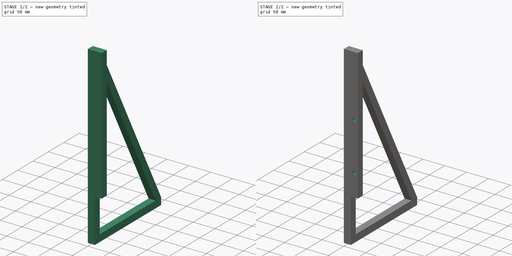
[diagram: build sequence overview — one tinted view per stage of 2, left to right]
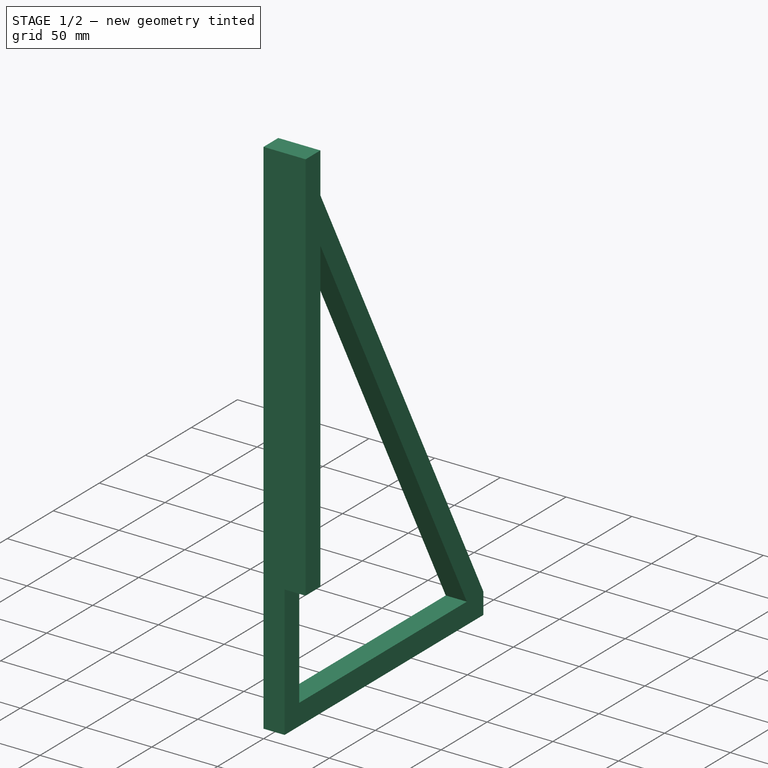
[diagram: stage 1 of 2 — iso view after this stage's code; geometry added in this stage tinted green]
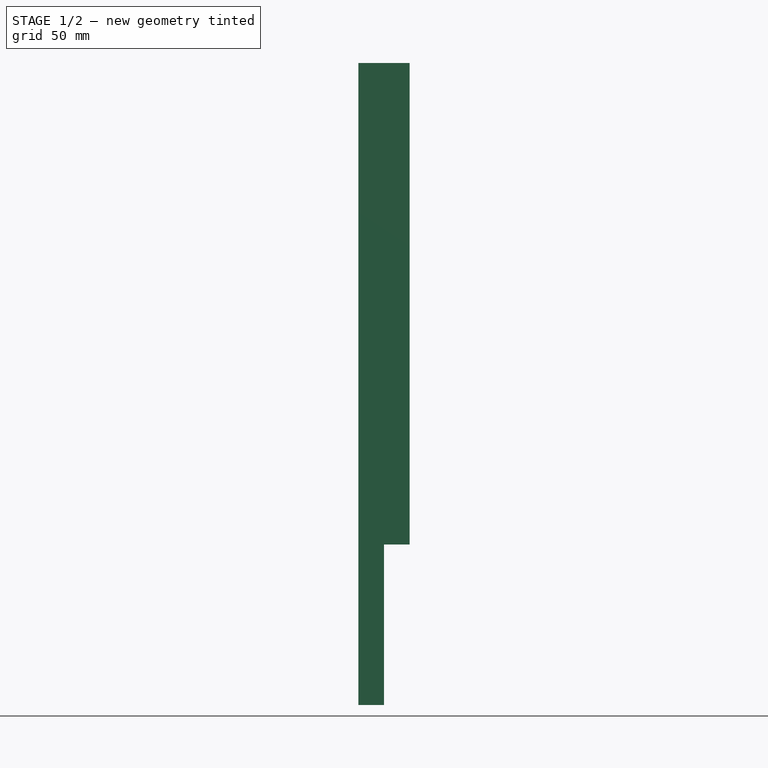
[diagram: stage 1 of 2 — front view after this stage's code; geometry added in this stage tinted green]
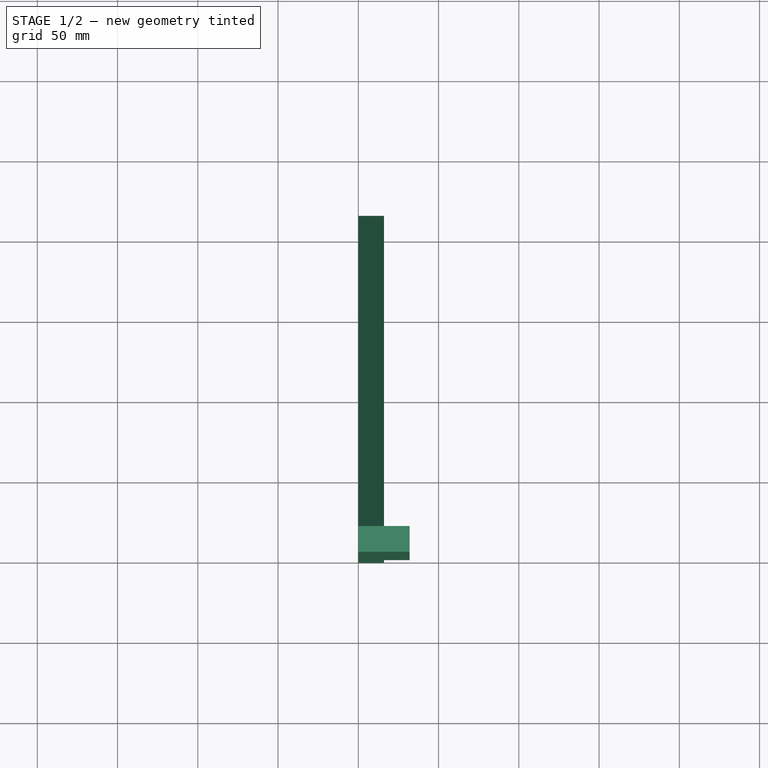
[diagram: stage 1 of 2 — top view after this stage's code; geometry added in this stage tinted green]
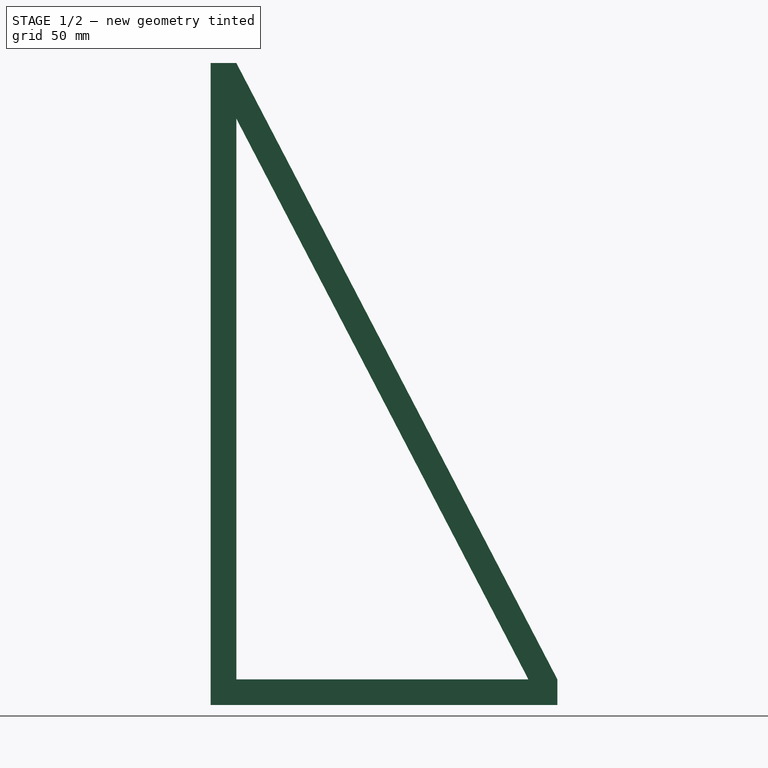
[diagram: stage 1 of 2 — right view after this stage's code; geometry added in this stage tinted green]
FCSTD DOCUMENT  (FreeCAD 1.0R39285 (Git))
Label: Supporting-A-Subframe-Flipped
License: All rights reserved
objects: Sketcher::SketchObject×3, PartDesign::Pad×2, PartDesign::Pocket×1, PartDesign::Body×1
note: 16 computed .brp shape members not serialized (recipe doc carries the construction recipe); baked Part::Feature solids carry a one-line shape summary decoded from their .brp

FEATURE [Sketcher::SketchObject] Sketch
  ArcFitTolerance = 1e-06
  AttachmentSupport = -> [YZ_Plane]
  FullyConstrained = true
  MakeInternals = false
  MapMode = 5
  Placement = pos=(0,0,0) rot=(0.57735,0.57735,0.57735;2.0944rad)
  sketch-geometry (12):
    g0: LineSegment StartX=0 StartY=0 StartZ=0 EndX=0 EndY=-100 EndZ=0
    g1: LineSegment StartX=0 StartY=-100 StartZ=0 EndX=16 EndY=-100 EndZ=0
    g2: LineSegment StartX=16 StartY=-100 StartZ=0 EndX=216 EndY=-100 EndZ=0
    g3: LineSegment StartX=216 StartY=-100 StartZ=0 EndX=216 EndY=-84 EndZ=0
    g4: LineSegment StartX=0 StartY=0 StartZ=0 EndX=0 EndY=300 EndZ=0
    g5: LineSegment StartX=0 StartY=300 StartZ=0 EndX=16 EndY=300 EndZ=0
    g6: LineSegment StartX=16 StartY=300 StartZ=0 EndX=216 EndY=-84 EndZ=0
    g7: LineSegment [constr] StartX=16 StartY=300 StartZ=0 EndX=16 EndY=-100 EndZ=0
    g8: LineSegment [constr] StartX=216 StartY=-84 StartZ=0 EndX=0 EndY=-84 EndZ=0
    g9: LineSegment StartX=16 StartY=265.363 StartZ=0 EndX=197.96 EndY=-84 EndZ=0
    g10: LineSegment StartX=16 StartY=265.363 StartZ=0 EndX=16 EndY=-84 EndZ=0
    g11: LineSegment StartX=16 StartY=-84 StartZ=0 EndX=197.96 EndY=-84 EndZ=0
  constraints (34):
    c: Distance(g0) = 100
    c: Coincident(g0,g-1)
    c: PointOnObject(g0,g-2)
    c: Distance(g1) = 16
    c: Coincident(g1,g0)
    c: Horizontal(g1)
    c: Distance(g2) = 200
    c: Coincident(g2,g1)
    c: Horizontal(g2)
    c: Distance(g3) = 16
    c: Coincident(g3,g2)
    c: Vertical(g3)
    c: Distance(g4) = 300
    c: Coincident(g4,g0)
    c: PointOnObject(g4,g-2)
    c: Distance(g5) = 16
    c: Coincident(g5,g4)
    c: Horizontal(g5)
    c: Coincident(g6,g5)
    c: Coincident(g6,g3)
    c: Coincident(g7,g5)
    c: Coincident(g7,g1)
    c: Coincident(g8,g3)
    c: Horizontal(g8)
    c: PointOnObject(g8,g0)
    c: Parallel(g9,g6)
    c: PointOnObject(g9,g7)
    c: PointOnObject(g9,g8)
    c: Distance(g6,g9) = 16
    c: Coincident(g10,g9)
    c: PointOnObject(g10,g8)
    c: Vertical(g10)
    c: Coincident(g11,g10)
    c: Coincident(g11,g9)
FEATURE [PartDesign::Pad] Pad
  Direction = (1,0,0)
  Length = 16
  Length2 = 10
  Placement = pos=(0,0,0) rot=(1,1,1;2.0944rad)
  Profile = -> Sketch
  ReferenceAxis = -> Sketch [N_Axis]
  Refine = true
  Suppressed = false
  Type = 0
FEATURE [Sketcher::SketchObject] Sketch001
  ArcFitTolerance = 1e-06
  AttachmentSupport = -> [Pad]
  FullyConstrained = true
  MakeInternals = false
  MapMode = 5
  Placement = pos=(-2.93e-14,0,0) rot=(0.57735,0.57735,-0.57735;4.18879rad)
  sketch-geometry (4):
    g0: LineSegment StartX=0 StartY=0 StartZ=0 EndX=16 EndY=0 EndZ=0
    g1: LineSegment StartX=16 StartY=0 StartZ=0 EndX=16 EndY=-300 EndZ=0
    g2: LineSegment StartX=16 StartY=-300 StartZ=0 EndX=0 EndY=-300 EndZ=0
    g3: LineSegment StartX=0 StartY=-300 StartZ=0 EndX=0 EndY=0 EndZ=0
  constraints (11):
    c: Distance(g0) = 16
    c: Coincident(g0,g-1)
    c: PointOnObject(g0,g-1)
    c: Distance(g1) = 300
    c: Coincident(g1,g0)
    c: Vertical(g1)
    c: Coincident(g2,g1)
    c: PointOnObject(g2,g-2)
    c: Horizontal(g2)
    c: Coincident(g3,g2)
    c: Coincident(g3,g0)
FEATURE [PartDesign::Pad] Pad001
  BaseFeature = -> Pad
  Direction = (-1,0,0)
  Length = 32
  Length2 = 10
  Placement = pos=(0,0,0) rot=(1,1,1;2.0944rad)
  Profile = -> Sketch001
  ReferenceAxis = -> Sketch001 [N_Axis]
  Refine = true
  Reversed = true
  Suppressed = false
  Type = 0
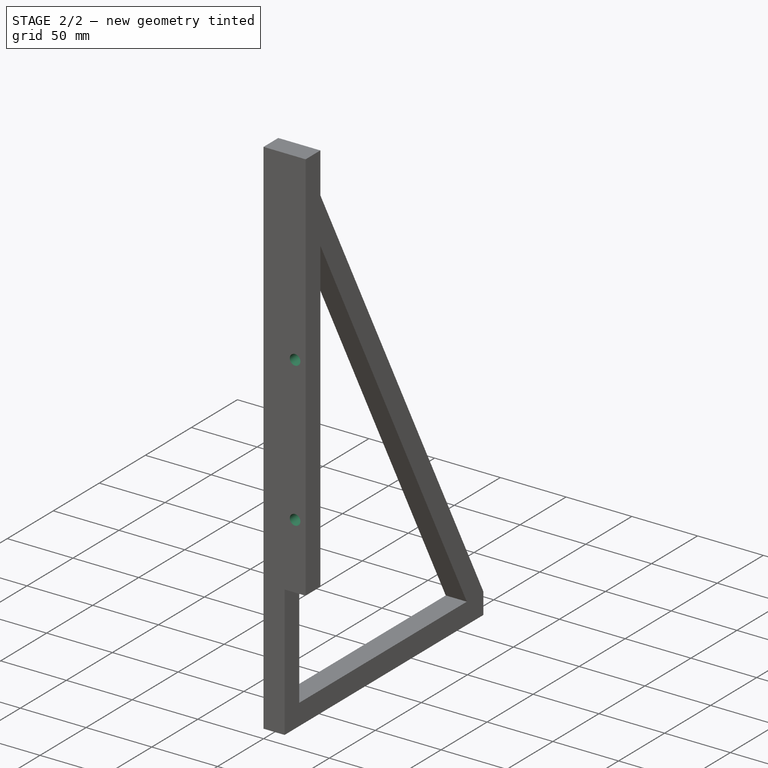
[diagram: stage 2 of 2 — iso view after this stage's code; geometry added in this stage tinted green]
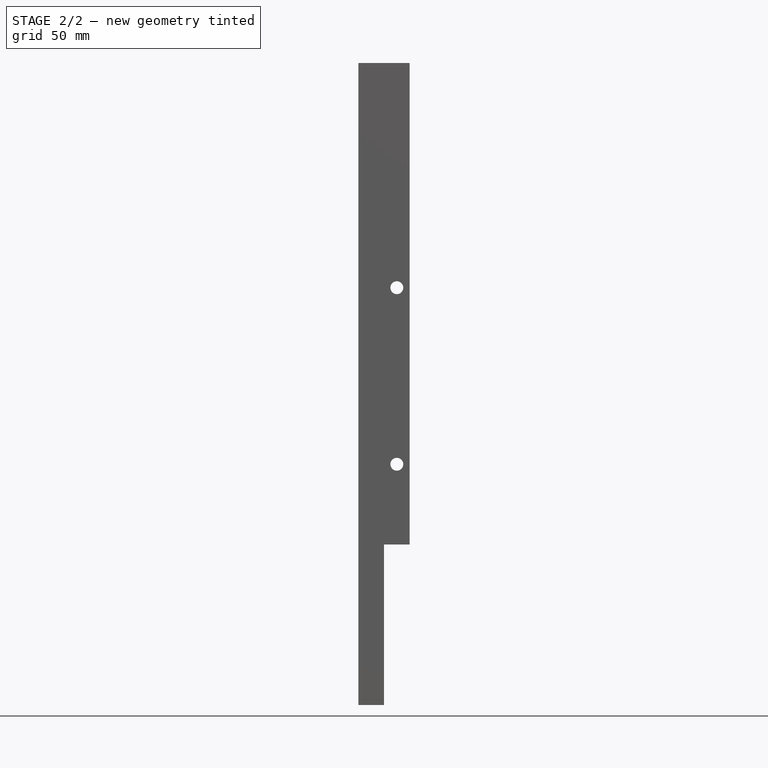
[diagram: stage 2 of 2 — front view after this stage's code; geometry added in this stage tinted green]
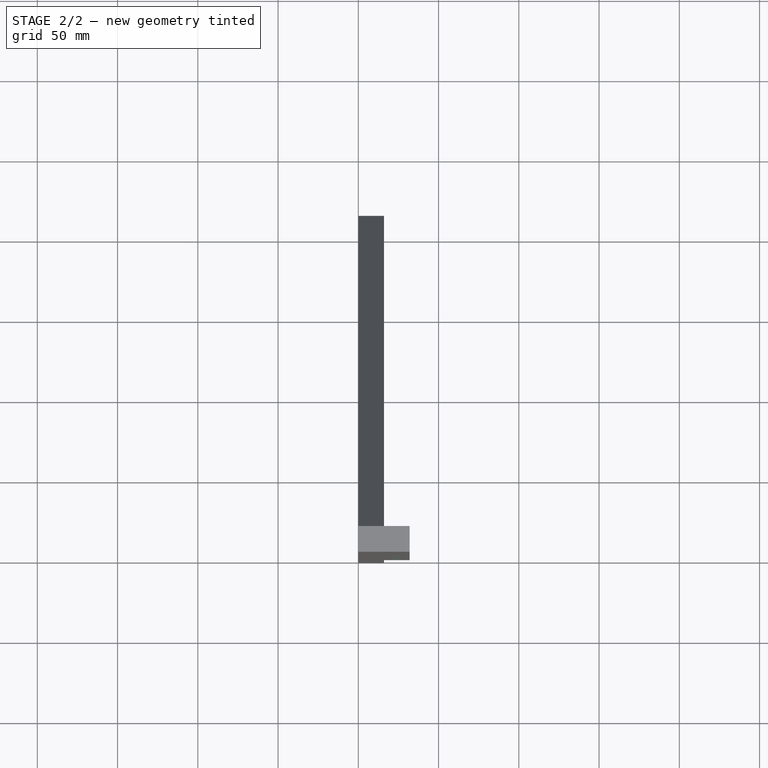
[diagram: stage 2 of 2 — top view after this stage's code; geometry added in this stage tinted green]
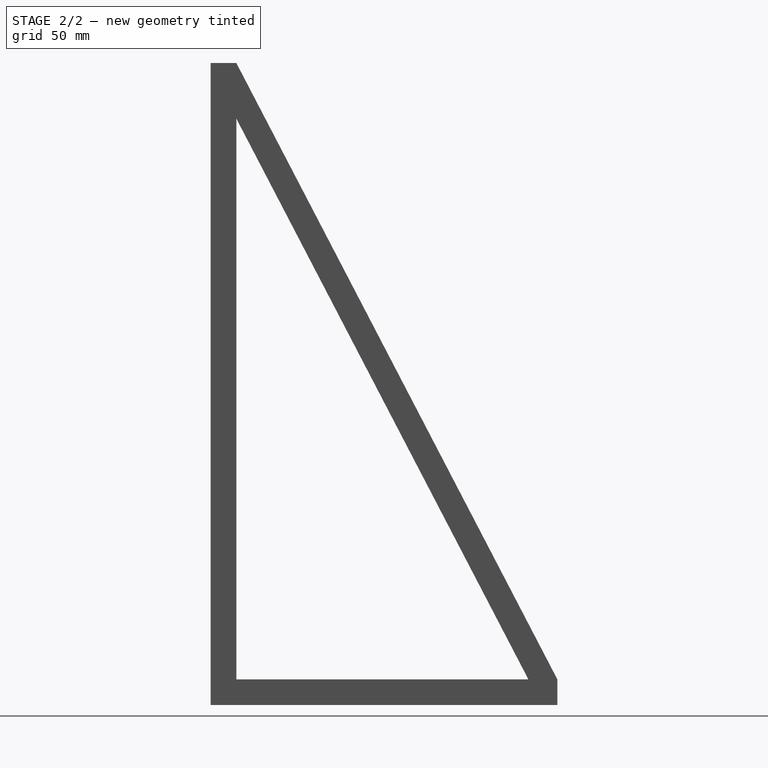
[diagram: stage 2 of 2 — right view after this stage's code; geometry added in this stage tinted green]
FEATURE [Sketcher::SketchObject] Sketch003
  ArcFitTolerance = 1e-06
  AttachmentSupport = -> [Pad001]
  FullyConstrained = true
  MakeInternals = false
  MapMode = 5
  Placement = pos=(0,1.09e-14,0) rot=(0.57735,0.57735,-0.57735;2.0944rad)
  sketch-geometry (6):
    g0: LineSegment [constr] StartX=0 StartY=0 StartZ=0 EndX=-50 EndY=0 EndZ=0
    g1: LineSegment [constr] StartX=-50 StartY=0 StartZ=0 EndX=-50 EndY=24 EndZ=0
    g2: LineSegment [constr] StartX=-50 StartY=0 StartZ=0 EndX=-160 EndY=0 EndZ=0
    g3: LineSegment [constr] StartX=-160 StartY=0 StartZ=0 EndX=-160 EndY=24 EndZ=0
    g4: Circle CenterX=-160 CenterY=24 CenterZ=0 NormalX=0 NormalY=0 NormalZ=1 AngleXU=0 Radius=4
    g5: Circle CenterX=-50 CenterY=24 CenterZ=0 NormalX=0 NormalY=0 NormalZ=1 AngleXU=0 Radius=4
  constraints (16):
    c: Distance(g0) = 50
    c: Coincident(g0,g-1)
    c: PointOnObject(g0,g-1)
    c: Distance(g1) = 24
    c: Coincident(g1,g0)
    c: Vertical(g1)
    c: Distance(g2) = 110
    c: Coincident(g2,g0)
    c: Horizontal(g2)
    c: Distance(g3) = 24
    c: Coincident(g3,g2)
    c: Vertical(g3)
    c: Diameter(g4) = 8
    c: Coincident(g4,g3)
    c: Diameter(g5) = 8
    c: Coincident(g5,g1)
FEATURE [PartDesign::Pocket] Pocket
  BaseFeature = -> Pad001
  Direction = (0,1,0)
  Length = 5
  Length2 = 5
  Placement = pos=(0,0,0) rot=(1,1,1;2.0944rad)
  Profile = -> Sketch003
  ReferenceAxis = -> Sketch003 [N_Axis]
  Refine = true
  Suppressed = false
  Type = 1
FEATURE [PartDesign::Body] Body
  AllowCompound = false
  Group = -> [Sketch,Pad,Sketch001,Pad001,Sketch003,Pocket]
  Origin = -> Origin
  Tip = -> Pocket
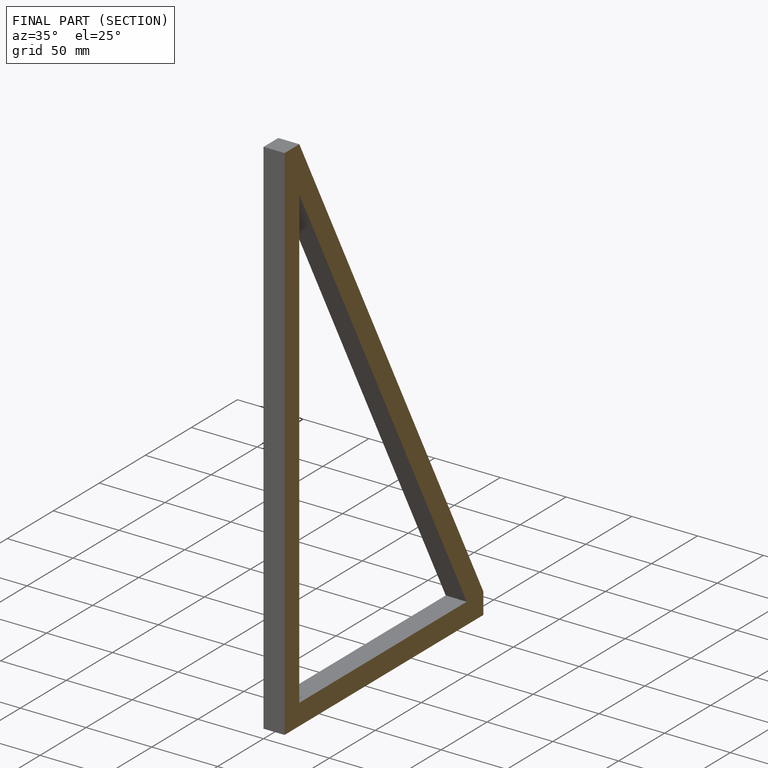
[diagram: finished part — half-section view (interior)]
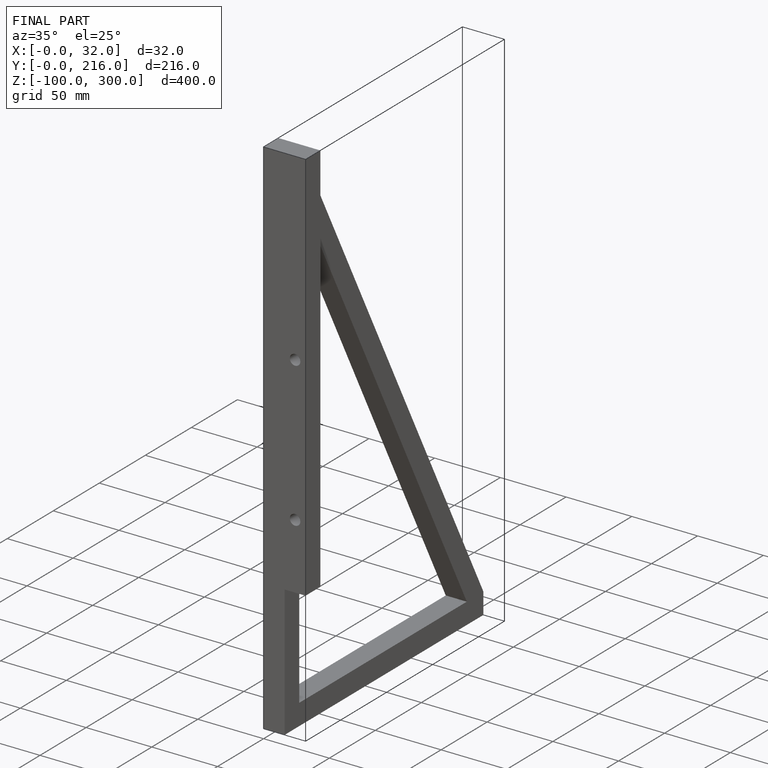
[diagram: finished part — iso view with bounding-box wireframe]
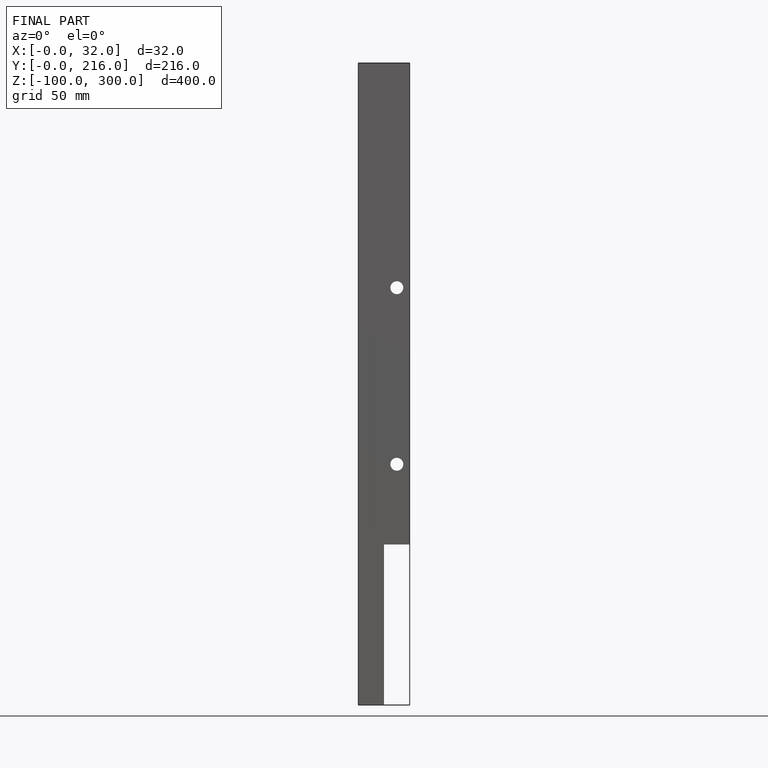
[diagram: finished part — front view with bounding-box wireframe]
